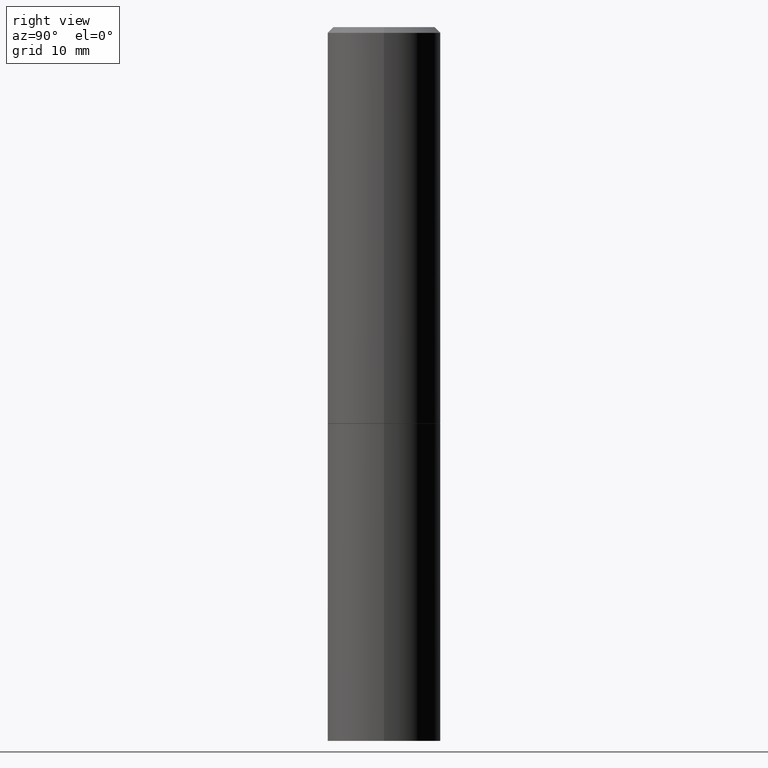
[diagram: clean part render]
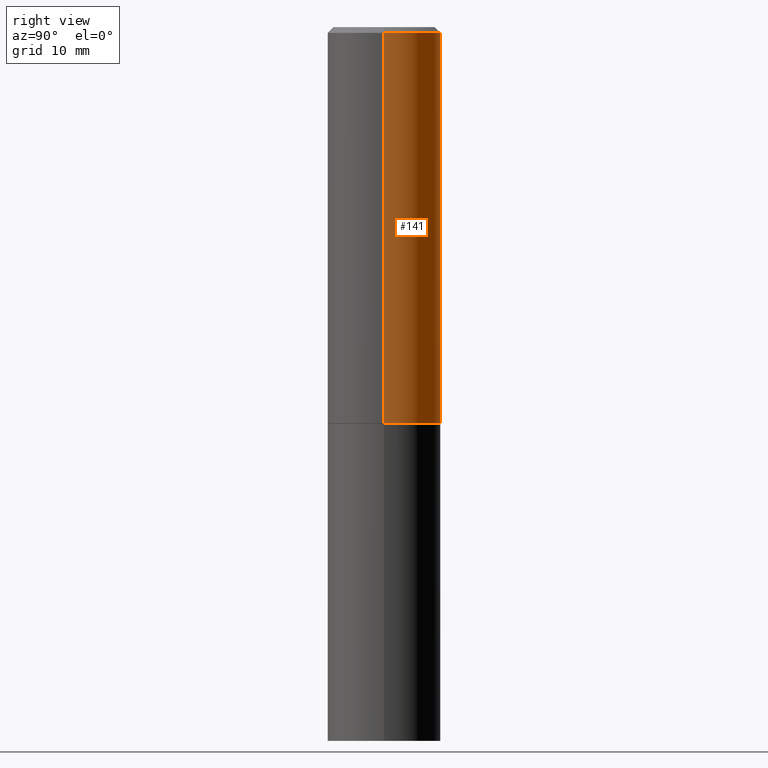
[diagram: same view with one face highlighted and labeled with its STEP entity id]
A machine part, right view. The second image highlights one B-rep face of the part: STEP entity #141.
In plain terms, the highlighted cylindrical surface (partial cylindrical patch) has radius 5 mm, axis along (-0, 0, 1).
Its self-contained STEP definition (entity closure, byte-faithful):
#14 = VERTEX_POINT ( 'NONE', #44 ) ;
#17 = EDGE_CURVE ( 'NONE', #14, #152, #156, .T. ) ;
#31 = CIRCLE ( 'NONE', #329, 0.1968499999999997752 ) ;
#36 = EDGE_CURVE ( 'NONE', #152, #270, #31, .T. ) ;
#44 = CARTESIAN_POINT ( 'NONE',  ( 0.1968499999999999417, -6.182016858555667463E-15, -1.376900000000000013 ) ) ;
#46 = ORIENTED_EDGE ( 'NONE', *, *, #148, .T. ) ;
#51 = CIRCLE ( 'NONE', #357, 0.1968499999999999417 ) ;
#53 = CARTESIAN_POINT ( 'NONE',  ( -0.1968499999999998307, 1.398703375343756013E-15, -9.682923725166775270E-30 ) ) ;
#61 = CARTESIAN_POINT ( 'NONE',  ( 0.000000000000000000, 0.000000000000000000, 0.000000000000000000 ) ) ;
#70 = EDGE_CURVE ( 'NONE', #283, #270, #195, .T. ) ;
#78 = CARTESIAN_POINT ( 'NONE',  ( 4.890937612370283668E-31, -6.982962677686305168E-17, -0.02000000000000004205 ) ) ;
#86 = VECTOR ( 'NONE', #191, 39.37007874015748143 ) ;
#91 = CARTESIAN_POINT ( 'NONE',  ( 3.367165999236314681E-29, -4.807420655453126643E-15, -1.376900000000000013 ) ) ;
#99 = CARTESIAN_POINT ( 'NONE',  ( 0.1968499999999997752, -1.420318657638187544E-15, -0.02000000000000004205 ) ) ;
#100 = ORIENTED_EDGE ( 'NONE', *, *, #17, .F. ) ;
#110 = CARTESIAN_POINT ( 'NONE',  ( 0.1968499999999998307, -1.374596203102540425E-15, 9.598753983154291049E-30 ) ) ;
#122 = AXIS2_PLACEMENT_3D ( 'NONE', #61, #218, #350 ) ;
#134 = DIRECTION ( 'NONE',  ( 1.000000000000000000, -6.982962677686266711E-15, 0.000000000000000000 ) ) ;
#141 = ADVANCED_FACE ( 'NONE', ( #146 ), #175, .T. ) ;
#146 = FACE_OUTER_BOUND ( 'NONE', #351, .T. ) ;
#148 = EDGE_CURVE ( 'NONE', #14, #283, #51, .T. ) ;
#152 = VERTEX_POINT ( 'NONE', #99 ) ;
#156 = LINE ( 'NONE', #110, #86 ) ;
#175 = CYLINDRICAL_SURFACE ( 'NONE', #122, 0.1968499999999998307 ) ;
#191 = DIRECTION ( 'NONE',  ( -2.445468806185136877E-29, 3.491481338843145188E-15, 1.000000000000000000 ) ) ;
#195 = LINE ( 'NONE', #53, #238 ) ;
#196 = CARTESIAN_POINT ( 'NONE',  ( -0.1968499999999997752, 1.304766576325676930E-15, -0.02000000000000004205 ) ) ;
#213 = DIRECTION ( 'NONE',  ( -2.445468806185136597E-29, 3.491481338843145583E-15, 1.000000000000000000 ) ) ;
#218 = DIRECTION ( 'NONE',  ( -2.445468806185136597E-29, 3.491481338843145583E-15, 1.000000000000000000 ) ) ;
#238 = VECTOR ( 'NONE', #360, 39.37007874015748143 ) ;
#240 = ORIENTED_EDGE ( 'NONE', *, *, #70, .T. ) ;
#270 = VERTEX_POINT ( 'NONE', #196 ) ;
#281 = ORIENTED_EDGE ( 'NONE', *, *, #36, .F. ) ;
#283 = VERTEX_POINT ( 'NONE', #337 ) ;
#292 = DIRECTION ( 'NONE',  ( -2.445468806185136597E-29, 3.491481338843145583E-15, 1.000000000000000000 ) ) ;
#326 = DIRECTION ( 'NONE',  ( 1.000000000000000000, -6.982962677686265922E-15, 0.000000000000000000 ) ) ;
#329 = AXIS2_PLACEMENT_3D ( 'NONE', #78, #292, #134 ) ;
#337 = CARTESIAN_POINT ( 'NONE',  ( -0.1968499999999999417, -1.039921765771237577E-15, -1.376900000000000013 ) ) ;
#350 = DIRECTION ( 'NONE',  ( 1.000000000000000000, -6.982962677686266711E-15, 4.876176775795935793E-29 ) ) ;
#351 = EDGE_LOOP ( 'NONE', ( #46, #240, #281, #100 ) ) ;
#357 = AXIS2_PLACEMENT_3D ( 'NONE', #91, #213, #326 ) ;
#360 = DIRECTION ( 'NONE',  ( -2.445468806185136877E-29, 3.491481338843145188E-15, 1.000000000000000000 ) ) ;